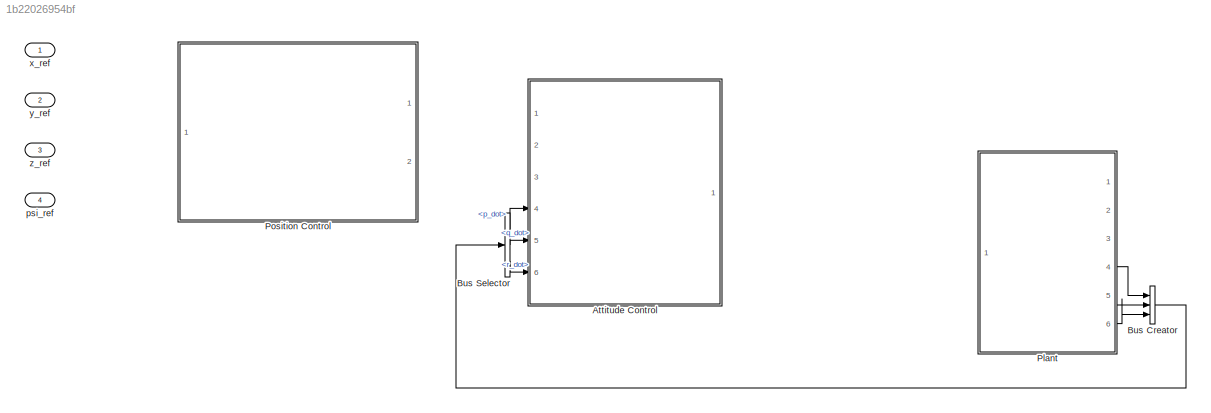
MODEL slx_1b22026954bf
KIND model
CONFIG AbsTol = auto
CONFIG EnableMultiTasking = off
CONFIG FixedStep = auto
CONFIG MaxStep = auto
CONFIG MinStep = auto
CONFIG RelTol = 1e-3
CONFIG SampleTimeConstraint = Unconstrained
CONFIG Solver = VariableStepAuto
CONFIG SolverName = VariableStepAuto
CONFIG StartTime = 0.0
CONFIG StopTime = 10.0
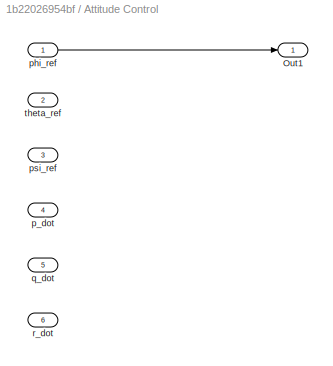
BLOCK [SubSystem] Attitude Control
  Ports = [6, 1]
  RequestExecContextInheritance = off
BLOCK [Outport] Attitude Control/Out1
BLOCK [Inport] Attitude Control/p_dot
  Port = 4
BLOCK [Inport] Attitude Control/phi_ref
BLOCK [Inport] Attitude Control/psi_ref
  Port = 3
BLOCK [Inport] Attitude Control/q_dot
  Port = 5
BLOCK [Inport] Attitude Control/r_dot
  Port = 6
BLOCK [Inport] Attitude Control/theta_ref
  Port = 2
BLOCK [BusCreator] Bus Creator
  DisplayOption = bar
  InheritFromInputs = on
  Inputs = p_dot,q_dot,r_dot
  Ports = [3, 1]
BLOCK [BusSelector] Bus Selector
  OutputSignals = p_dot,q_dot,r_dot
  Ports = [1, 3]
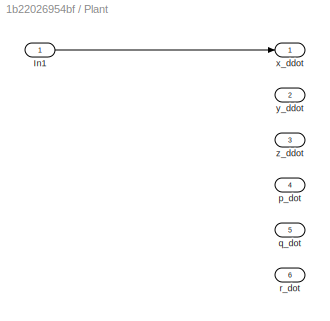
BLOCK [SubSystem] Plant
  Ports = [1, 6]
  RequestExecContextInheritance = off
BLOCK [Inport] Plant/In1
BLOCK [Outport] Plant/p_dot
  Port = 4
BLOCK [Outport] Plant/q_dot
  Port = 5
BLOCK [Outport] Plant/r_dot
  Port = 6
BLOCK [Outport] Plant/x_ddot
BLOCK [Outport] Plant/y_ddot
  Port = 2
BLOCK [Outport] Plant/z_ddot
  Port = 3
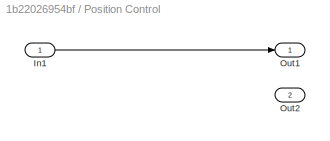
BLOCK [SubSystem] Position Control
  PortSchema = {"entries":[{"content":{"sides":[{"content":{"connectorIds":["In1"]},"type":"ConnectorPlacement.EquallySpacedRectSide","uuid":"d7cc4d15-1547-4393-889e-795e986cf8ca"},{"content":{"connectorIds":["Out1"],"side":"RIGHT"},"type":"ConnectorPlacement.EquallySpacedRectSide","uuid":"a283f022-b97c-4b70-a869-5d2bb415b2da"},{"content":{"connectorIds":[],"side":"TOP"},"type":"ConnectorPlacement.EquallySpacedR...<+392ch>
  Ports = [1, 2]
  RequestExecContextInheritance = off
BLOCK [Inport] Position Control/In1
BLOCK [Outport] Position Control/Out1
BLOCK [Outport] Position Control/Out2
  Port = 2
BLOCK [Inport] psi_ref
  Port = 4
BLOCK [Inport] x_ref
BLOCK [Inport] y_ref
  Port = 2
BLOCK [Inport] z_ref
  Port = 3
LINE Attitude Control/phi_ref:1 -> Attitude Control/Out1:1
LINE Bus Creator:1 -> Bus Selector:1
LINE Bus Selector:1 -> Attitude Control:4
LINE Bus Selector:2 -> Attitude Control:5
LINE Bus Selector:3 -> Attitude Control:6
LINE Plant/In1:1 -> Plant/x_ddot:1
LINE Plant:4 -> Bus Creator:1
LINE Plant:5 -> Bus Creator:2
LINE Plant:6 -> Bus Creator:3
LINE Position Control/In1:1 -> Position Control/Out1:1
